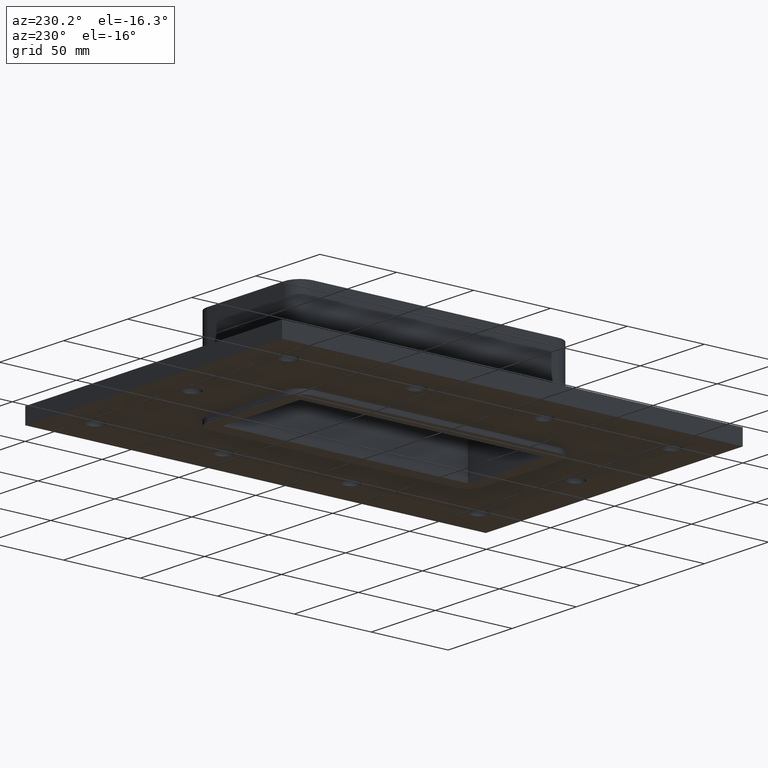
[diagram: clean part render]
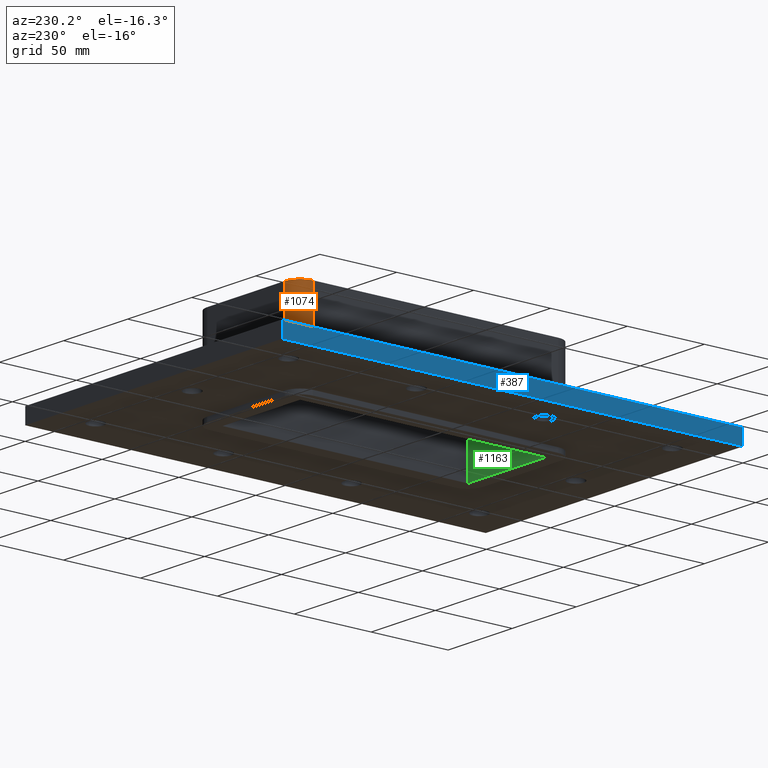
[diagram: same view with three faces highlighted in distinct colors, each labeled with its STEP entity id]
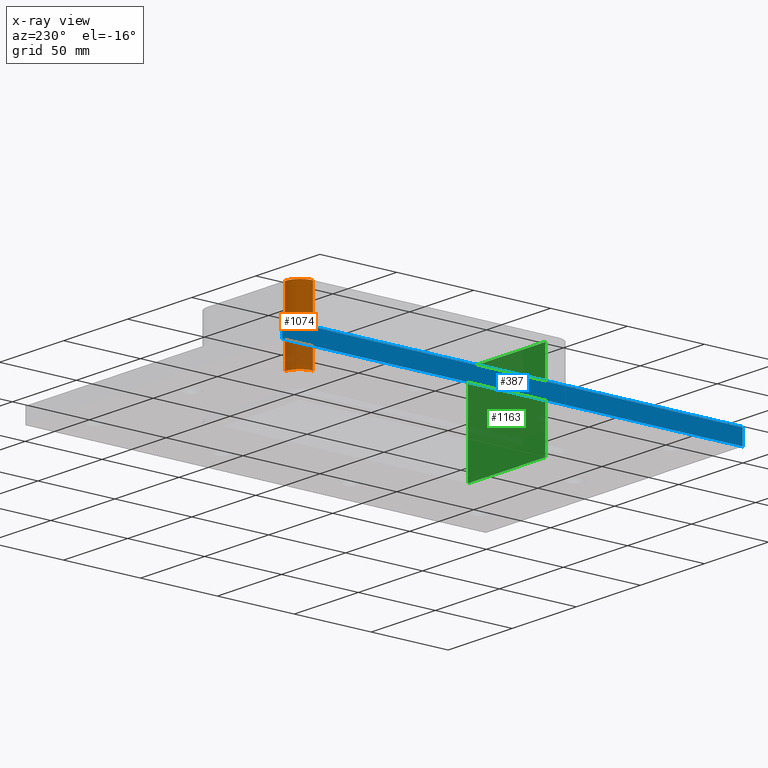
[diagram: x-ray of the same camera — body ghosted, the three highlighted faces saturated]
A machine part, auxiliary view with three faces highlighted in distinct colors.
The next image is the same camera in x-ray (body ghosted, the three faces saturated) — at least one of them is partly hidden behind the body in this view.
Their STEP definitions:

[orange] entity #1074 — the highlighted cylindrical surface (edge-blend (fillet) strip) has radius 10 mm, axis along (0, 0, 1).
#558=CARTESIAN_POINT('',(-40.250000000000057,79.750000000000014,-17.0));
#559=VERTEX_POINT('',#558);
#566=CARTESIAN_POINT('',(-30.250000000000057,89.750000000000014,-17.0));
#567=VERTEX_POINT('',#566);
#568=CARTESIAN_POINT('',(-30.250000000000121,79.750000000000171,-16.999999999999996));
#569=DIRECTION('',(0.0,0.0,1.0));
#570=DIRECTION('',(-0.707106781186548,0.707106781186547,0.0));
#571=AXIS2_PLACEMENT_3D('',#568,#569,#570);
#572=CIRCLE('',#571,10.0);
#573=EDGE_CURVE('',#567,#559,#572,.T.);
#888=CARTESIAN_POINT('',(-30.250000000000121,89.750000000000156,30.0));
#889=VERTEX_POINT('',#888);
#890=CARTESIAN_POINT('',(-30.250000000000121,89.750000000000156,30.0));
#891=DIRECTION('',(0.0,0.0,-1.0));
#892=VECTOR('',#891,47.0);
#893=LINE('',#890,#892);
#894=EDGE_CURVE('',#889,#567,#893,.T.);
#1050=CARTESIAN_POINT('',(-30.250000000000121,79.750000000000171,0.0));
#1051=DIRECTION('',(0.0,0.0,1.0));
#1052=DIRECTION('',(-0.707106781186548,0.707106781186547,0.0));
#1053=AXIS2_PLACEMENT_3D('',#1050,#1051,#1052);
#1054=CYLINDRICAL_SURFACE('',#1053,10.0);
#1055=ORIENTED_EDGE('',*,*,#573,.T.);
#1056=CARTESIAN_POINT('',(-40.250000000000121,79.750000000000156,30.0));
#1057=VERTEX_POINT('',#1056);
#1058=CARTESIAN_POINT('',(-40.250000000000121,79.750000000000156,-17.0));
#1059=DIRECTION('',(0.0,0.0,1.0));
#1060=VECTOR('',#1059,47.0);
#1061=LINE('',#1058,#1060);
#1062=EDGE_CURVE('',#559,#1057,#1061,.T.);
#1063=ORIENTED_EDGE('',*,*,#1062,.T.);
#1064=CARTESIAN_POINT('',(-30.250000000000121,79.750000000000171,30.0));
#1065=DIRECTION('',(0.0,0.0,-1.0));
#1066=DIRECTION('',(-0.707106781186548,0.707106781186547,0.0));
#1067=AXIS2_PLACEMENT_3D('',#1064,#1065,#1066);
#1068=CIRCLE('',#1067,10.0);
#1069=EDGE_CURVE('',#1057,#889,#1068,.T.);
#1070=ORIENTED_EDGE('',*,*,#1069,.T.);
#1071=ORIENTED_EDGE('',*,*,#894,.T.);
#1072=EDGE_LOOP('',(#1055,#1063,#1070,#1071));
#1073=FACE_OUTER_BOUND('',#1072,.T.);
#1074=ADVANCED_FACE('',(#1073),#1054,.T.);

[blue] entity #387 — the highlighted planar face has unit normal (-1, 0, 0).
#348=CARTESIAN_POINT('',(-100.24999999999999,149.75,-27.0));
#349=DIRECTION('',(-1.0,0.0,0.0));
#350=DIRECTION('',(0.0,-1.0,0.0));
#351=AXIS2_PLACEMENT_3D('',#348,#349,#350);
#352=PLANE('',#351);
#353=CARTESIAN_POINT('',(-100.24999999999999,-149.75000000000003,-27.0));
#354=VERTEX_POINT('',#353);
#355=CARTESIAN_POINT('',(-100.24999999999999,149.75,-27.0));
#356=VERTEX_POINT('',#355);
#357=CARTESIAN_POINT('',(-100.24999999999999,-149.75000000000003,-27.0));
#358=DIRECTION('',(0.0,1.0,0.0));
#359=VECTOR('',#358,299.5);
#360=LINE('',#357,#359);
#361=EDGE_CURVE('',#354,#356,#360,.T.);
#362=ORIENTED_EDGE('',*,*,#361,.F.);
#363=CARTESIAN_POINT('',(-100.24999999999999,-149.75000000000003,-17.0));
#364=VERTEX_POINT('',#363);
#365=CARTESIAN_POINT('',(-100.24999999999999,-149.75000000000003,-27.0));
#366=DIRECTION('',(0.0,0.0,1.0));
#367=VECTOR('',#366,10.0);
#368=LINE('',#365,#367);
#369=EDGE_CURVE('',#354,#364,#368,.T.);
#370=ORIENTED_EDGE('',*,*,#369,.T.);
#371=CARTESIAN_POINT('',(-100.24999999999999,149.75,-17.0));
#372=VERTEX_POINT('',#371);
#373=CARTESIAN_POINT('',(-100.24999999999999,149.74999999999997,-17.0));
#374=DIRECTION('',(0.0,-1.0,0.0));
#375=VECTOR('',#374,299.5);
#376=LINE('',#373,#375);
#377=EDGE_CURVE('',#372,#364,#376,.T.);
#378=ORIENTED_EDGE('',*,*,#377,.F.);
#379=CARTESIAN_POINT('',(-100.24999999999999,149.75,-27.0));
#380=DIRECTION('',(0.0,0.0,1.0));
#381=VECTOR('',#380,10.0);
#382=LINE('',#379,#381);
#383=EDGE_CURVE('',#356,#372,#382,.T.);
#384=ORIENTED_EDGE('',*,*,#383,.F.);
#385=EDGE_LOOP('',(#362,#370,#378,#384));
#386=FACE_OUTER_BOUND('',#385,.T.);
#387=ADVANCED_FACE('',(#386),#352,.T.);

[green] entity #1163 — the highlighted planar face has unit normal (0, -1, 0).
#966=CARTESIAN_POINT('',(30.249999999999915,-79.749999999999829,-30.0));
#967=VERTEX_POINT('',#966);
#984=CARTESIAN_POINT('',(-30.250000000000057,-79.749999999999659,-30.0));
#985=VERTEX_POINT('',#984);
#992=CARTESIAN_POINT('',(-30.250000000000057,-79.749999999999659,-30.0));
#993=DIRECTION('',(1.0,0.0,0.0));
#994=VECTOR('',#993,60.499999999999972);
#995=LINE('',#992,#994);
#996=EDGE_CURVE('',#985,#967,#995,.T.);
#1123=CARTESIAN_POINT('',(-30.250000000000057,-79.749999999999659,30.0));
#1124=VERTEX_POINT('',#1123);
#1131=CARTESIAN_POINT('',(-30.250000000000057,-79.749999999999659,30.0));
#1132=DIRECTION('',(0.0,0.0,-1.0));
#1133=VECTOR('',#1132,60.0);
#1134=LINE('',#1131,#1133);
#1135=EDGE_CURVE('',#1124,#985,#1134,.T.);
#1140=CARTESIAN_POINT('',(30.249999999999915,-79.749999999999829,30.0));
#1141=DIRECTION('',(0.0,-1.0,0.0));
#1142=DIRECTION('',(-1.0,0.0,0.0));
#1143=AXIS2_PLACEMENT_3D('',#1140,#1141,#1142);
#1144=PLANE('',#1143);
#1145=ORIENTED_EDGE('',*,*,#996,.F.);
#1146=ORIENTED_EDGE('',*,*,#1135,.F.);
#1147=CARTESIAN_POINT('',(30.249999999999915,-79.749999999999829,30.0));
#1148=VERTEX_POINT('',#1147);
#1149=CARTESIAN_POINT('',(30.249999999999915,-79.749999999999829,30.0));
#1150=DIRECTION('',(-1.0,0.0,0.0));
#1151=VECTOR('',#1150,60.499999999999972);
#1152=LINE('',#1149,#1151);
#1153=EDGE_CURVE('',#1148,#1124,#1152,.T.);
#1154=ORIENTED_EDGE('',*,*,#1153,.F.);
#1155=CARTESIAN_POINT('',(30.249999999999915,-79.749999999999829,30.0));
#1156=DIRECTION('',(0.0,0.0,-1.0));
#1157=VECTOR('',#1156,60.0);
#1158=LINE('',#1155,#1157);
#1159=EDGE_CURVE('',#1148,#967,#1158,.T.);
#1160=ORIENTED_EDGE('',*,*,#1159,.T.);
#1161=EDGE_LOOP('',(#1145,#1146,#1154,#1160));
#1162=FACE_OUTER_BOUND('',#1161,.T.);
#1163=ADVANCED_FACE('',(#1162),#1144,.F.);